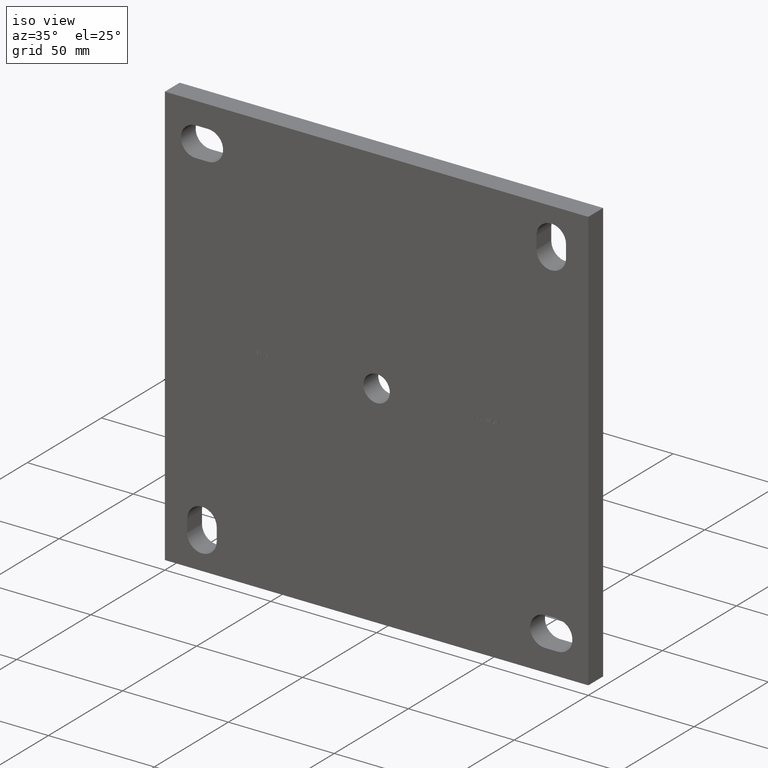
[diagram: clean part render]
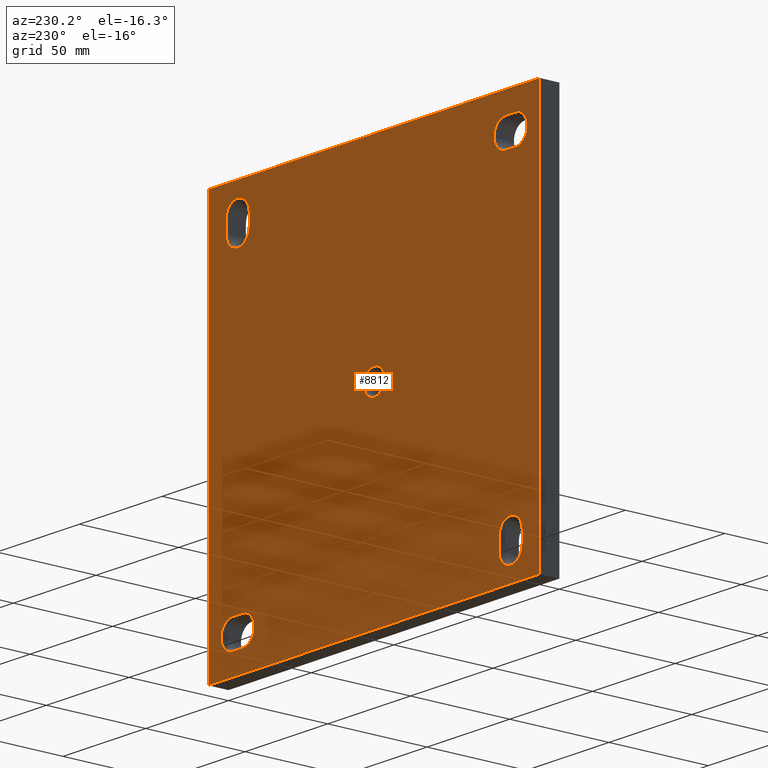
[diagram: tour spotlight — one face highlighted and labeled with its STEP entity id]
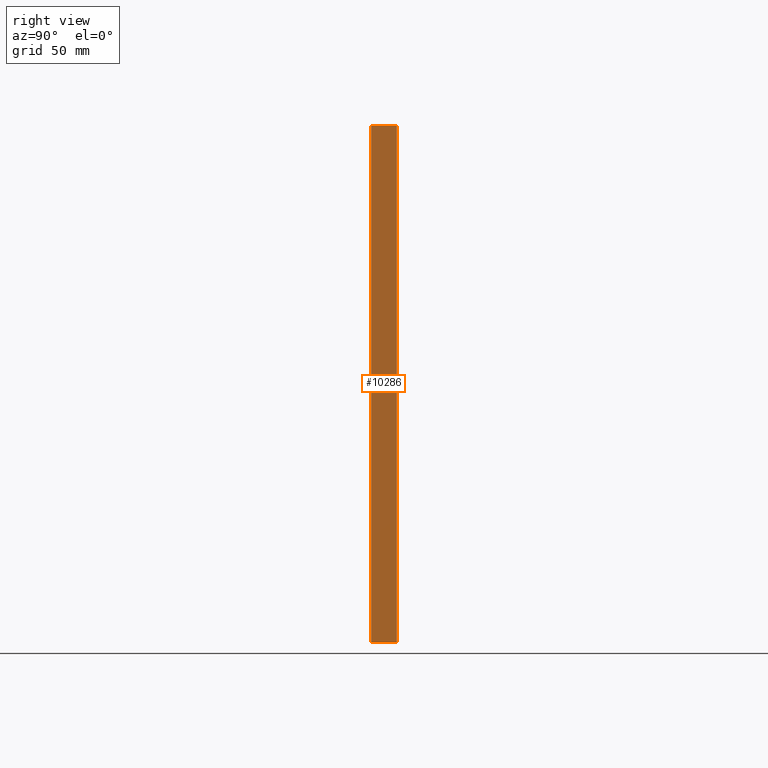
[diagram: tour spotlight — one face highlighted and labeled with its STEP entity id]
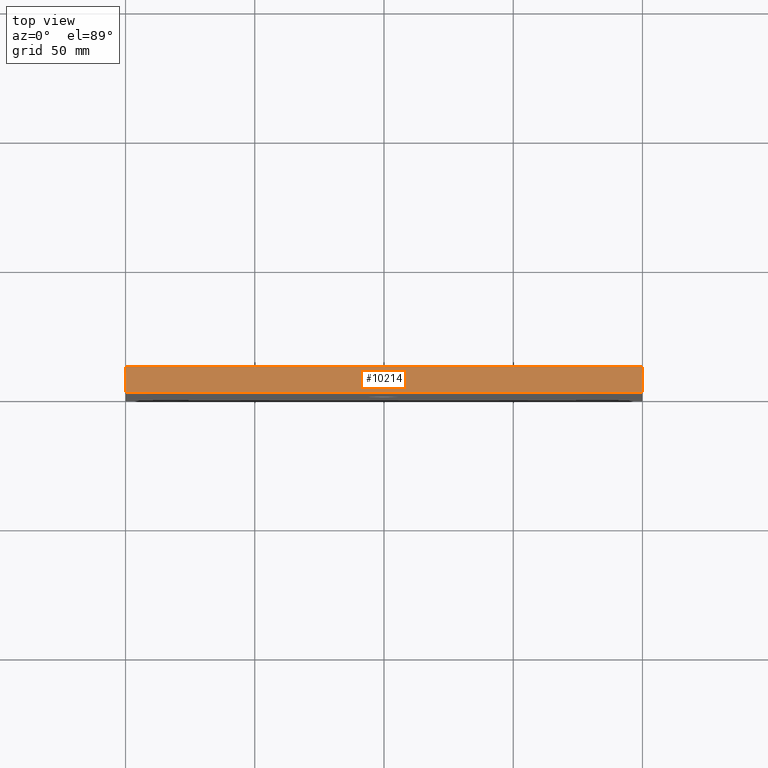
[diagram: tour spotlight — one face highlighted and labeled with its STEP entity id]
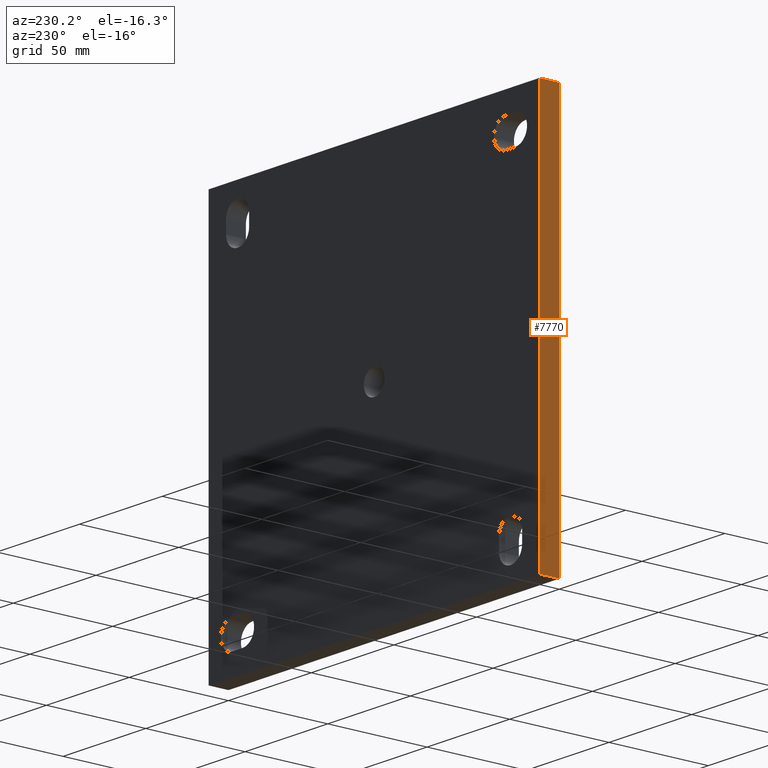
[diagram: tour spotlight — one face highlighted and labeled with its STEP entity id]
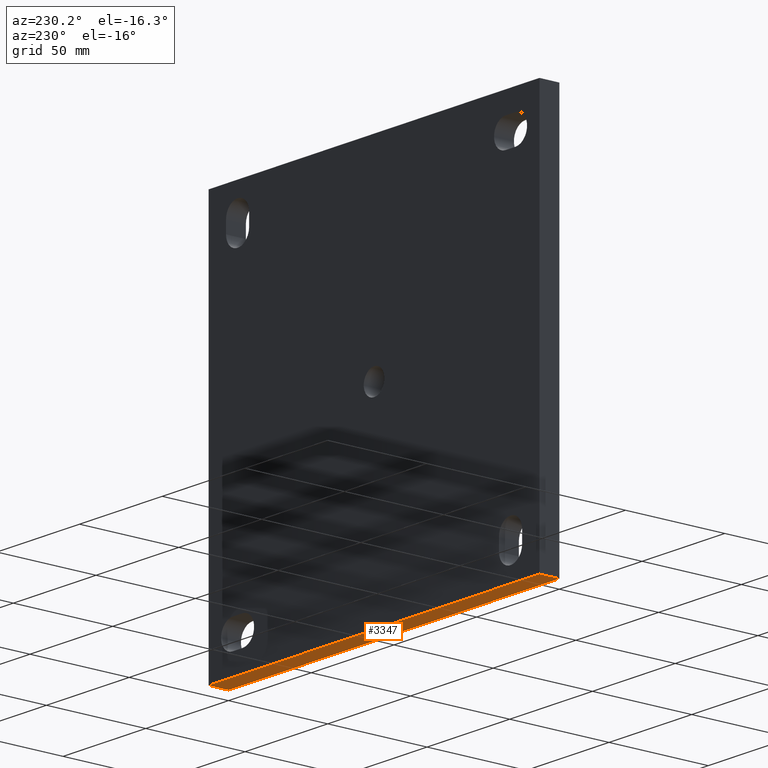
[diagram: tour spotlight — one face highlighted and labeled with its STEP entity id]
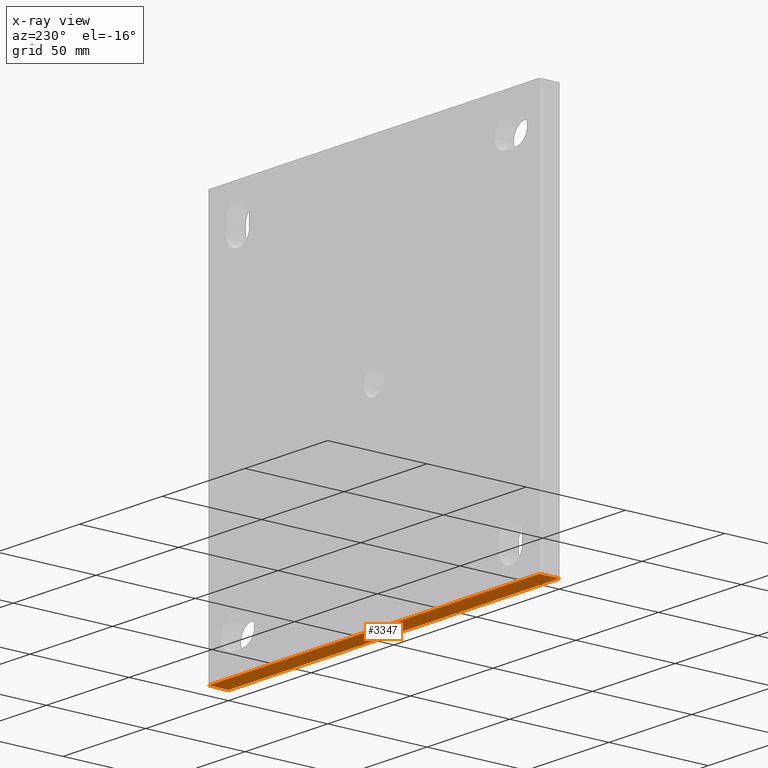
[diagram: x-ray of the same camera — body ghosted, this tour face saturated]
A machine part: a face-by-face anatomy tour. The part has 270 B-rep faces; the first image is the clean iso view, then the 5 largest visible faces are spotlighted one at a time (largest first), each with its STEP entity span.

Face 1 — auxiliary view, entity #8812. In plain terms, the highlighted planar face has unit normal (0, 1, 0).
Definition (entity closure, byte-faithful):
#16 = CIRCLE ( 'NONE', #5270, 6.999999999999992000 ) ;
#69 = VERTEX_POINT ( 'NONE', #6260 ) ;
#132 = DIRECTION ( 'NONE',  ( -1.387778780781445700E-016, -0.0000000000000000000, -1.000000000000000000 ) ) ;
#184 = CIRCLE ( 'NONE', #5570, 6.250000000000000000 ) ;
#253 = ORIENTED_EDGE ( 'NONE', *, *, #3985, .F. ) ;
#302 = AXIS2_PLACEMENT_3D ( 'NONE', #5191, #8488, #1753 ) ;
#403 = ORIENTED_EDGE ( 'NONE', *, *, #8246, .F. ) ;
#418 = ORIENTED_EDGE ( 'NONE', *, *, #8527, .F. ) ;
#451 = LINE ( 'NONE', #12053, #7504 ) ;
#498 = ORIENTED_EDGE ( 'NONE', *, *, #12910, .T. ) ;
#651 = ORIENTED_EDGE ( 'NONE', *, *, #6184, .F. ) ;
#986 = EDGE_CURVE ( 'NONE', #10662, #69, #16, .T. ) ;
#1078 = DIRECTION ( 'NONE',  ( -0.0000000000000000000, -0.0000000000000000000, -1.000000000000000000 ) ) ;
#1121 = DIRECTION ( 'NONE',  ( 0.0000000000000000000, 1.000000000000000000, 0.0000000000000000000 ) ) ;
#1127 = CIRCLE ( 'NONE', #2893, 6.999999999999992000 ) ;
#1176 = EDGE_CURVE ( 'NONE', #8747, #6365, #1602, .T. ) ;
#1190 = EDGE_LOOP ( 'NONE', ( #253, #10728 ) ) ;
#1422 = VERTEX_POINT ( 'NONE', #8541 ) ;
#1490 = EDGE_LOOP ( 'NONE', ( #14005, #9247, #651, #3257 ) ) ;
#1532 = DIRECTION ( 'NONE',  ( 0.0000000000000000000, 0.0000000000000000000, 1.000000000000000000 ) ) ;
#1602 = LINE ( 'NONE', #13160, #6186 ) ;
#1653 = PLANE ( 'NONE',  #302 ) ;
#1753 = DIRECTION ( 'NONE',  ( 0.0000000000000000000, -0.0000000000000000000, 1.000000000000000000 ) ) ;
#1755 = CIRCLE ( 'NONE', #2763, 6.999999999999992000 ) ;
#1892 = ORIENTED_EDGE ( 'NONE', *, *, #7814, .T. ) ;
#2109 = EDGE_CURVE ( 'NONE', #6828, #3331, #10063, .T. ) ;
#2131 = VERTEX_POINT ( 'NONE', #12711 ) ;
#2164 = VERTEX_POINT ( 'NONE', #9656 ) ;
#2234 = LINE ( 'NONE', #12461, #9094 ) ;
#2345 = VECTOR ( 'NONE', #9586, 1000.000000000000000 ) ;
#2367 = VERTEX_POINT ( 'NONE', #7759 ) ;
#2393 = DIRECTION ( 'NONE',  ( 0.0000000000000000000, 1.000000000000000000, 0.0000000000000000000 ) ) ;
#2538 = ORIENTED_EDGE ( 'NONE', *, *, #10329, .F. ) ;
#2633 = DIRECTION ( 'NONE',  ( 0.0000000000000000000, 1.000000000000000000, 0.0000000000000000000 ) ) ;
#2658 = DIRECTION ( 'NONE',  ( 0.0000000000000000000, 0.0000000000000000000, 1.000000000000000000 ) ) ;
#2727 = CIRCLE ( 'NONE', #8997, 6.999999999999992000 ) ;
#2763 = AXIS2_PLACEMENT_3D ( 'NONE', #9409, #11755, #1532 ) ;
#2837 = DIRECTION ( 'NONE',  ( 0.0000000000000000000, 0.0000000000000000000, 1.000000000000000000 ) ) ;
#2859 = CARTESIAN_POINT ( 'NONE',  ( -82.50000000000000000, 10.00000000000000000, -85.50000000000001400 ) ) ;
#2893 = AXIS2_PLACEMENT_3D ( 'NONE', #13314, #13465, #6650 ) ;
#3234 = VECTOR ( 'NONE', #5743, 1000.000000000000000 ) ;
#3257 = ORIENTED_EDGE ( 'NONE', *, *, #12806, .F. ) ;
#3331 = VERTEX_POINT ( 'NONE', #6038 ) ;
#3387 = VECTOR ( 'NONE', #7013, 1000.000000000000000 ) ;
#3483 = CARTESIAN_POINT ( 'NONE',  ( 79.49999999999998600, 10.00000000000000000, -75.50000000000001400 ) ) ;
#3512 = DIRECTION ( 'NONE',  ( 0.0000000000000000000, 1.000000000000000000, 0.0000000000000000000 ) ) ;
#3526 = CIRCLE ( 'NONE', #8027, 6.250000000000000000 ) ;
#3667 = CARTESIAN_POINT ( 'NONE',  ( 0.0000000000000000000, 10.00000000000000000, 0.0000000000000000000 ) ) ;
#3779 = VERTEX_POINT ( 'NONE', #12376 ) ;
#3977 = DIRECTION ( 'NONE',  ( 0.0000000000000000000, 0.0000000000000000000, 1.000000000000000000 ) ) ;
#3985 = EDGE_CURVE ( 'NONE', #9431, #10487, #3526, .T. ) ;
#4081 = DIRECTION ( 'NONE',  ( 0.0000000000000000000, 0.0000000000000000000, 1.000000000000000000 ) ) ;
#4120 = CARTESIAN_POINT ( 'NONE',  ( -75.50000000000001400, 10.00000000000000000, -85.50000000000001400 ) ) ;
#4128 = VERTEX_POINT ( 'NONE', #4159 ) ;
#4129 = CIRCLE ( 'NONE', #13408, 6.999999999999992000 ) ;
#4159 = CARTESIAN_POINT ( 'NONE',  ( 85.50000000000001400, 10.00000000000000000, -89.50000000000000000 ) ) ;
#4282 = CARTESIAN_POINT ( 'NONE',  ( -100.0000000000000000, 10.00000000000000000, -99.99999999999997200 ) ) ;
#4376 = EDGE_CURVE ( 'NONE', #8493, #10599, #1755, .T. ) ;
#4423 = CARTESIAN_POINT ( 'NONE',  ( 85.50000000000000000, 10.00000000000000000, -82.50000000000000000 ) ) ;
#4464 = CARTESIAN_POINT ( 'NONE',  ( 82.50000000000000000, 10.00000000000000000, 85.50000000000001400 ) ) ;
#4470 = VERTEX_POINT ( 'NONE', #6210 ) ;
#4562 = AXIS2_PLACEMENT_3D ( 'NONE', #4423, #11310, #11357 ) ;
#4610 = DIRECTION ( 'NONE',  ( 0.0000000000000000000, 0.0000000000000000000, 1.000000000000000000 ) ) ;
#4727 = VECTOR ( 'NONE', #13340, 1000.000000000000000 ) ;
#4766 = ORIENTED_EDGE ( 'NONE', *, *, #13560, .T. ) ;
#4811 = ORIENTED_EDGE ( 'NONE', *, *, #4376, .F. ) ;
#4823 = CARTESIAN_POINT ( 'NONE',  ( 82.50000000000000000, 10.00000000000000000, 79.49999999999998600 ) ) ;
#4845 = EDGE_CURVE ( 'NONE', #10487, #9431, #184, .T. ) ;
#5191 = CARTESIAN_POINT ( 'NONE',  ( 0.0000000000000000000, 10.00000000000000000, 0.0000000000000000000 ) ) ;
#5252 = CARTESIAN_POINT ( 'NONE',  ( -82.50000000000000000, 10.00000000000000000, -79.49999999999998600 ) ) ;
#5270 = AXIS2_PLACEMENT_3D ( 'NONE', #2859, #8552, #3977 ) ;
#5405 = EDGE_LOOP ( 'NONE', ( #4811, #12137, #418, #14534 ) ) ;
#5504 = CARTESIAN_POINT ( 'NONE',  ( -89.50000000000000000, 10.00000000000000000, -85.50000000000001400 ) ) ;
#5514 = LINE ( 'NONE', #13131, #8685 ) ;
#5531 = EDGE_CURVE ( 'NONE', #69, #3779, #9305, .T. ) ;
#5570 = AXIS2_PLACEMENT_3D ( 'NONE', #3667, #3512, #12591 ) ;
#5680 = AXIS2_PLACEMENT_3D ( 'NONE', #9629, #9577, #2837 ) ;
#5743 = DIRECTION ( 'NONE',  ( -0.0000000000000000000, -0.0000000000000000000, -1.000000000000000000 ) ) ;
#5857 = LINE ( 'NONE', #7242, #7786 ) ;
#5918 = VERTEX_POINT ( 'NONE', #6287 ) ;
#6001 = CARTESIAN_POINT ( 'NONE',  ( -100.0000000000000000, 10.00000000000000000, -99.99999999999997200 ) ) ;
#6038 = CARTESIAN_POINT ( 'NONE',  ( -99.99999999999998600, 10.00000000000000000, 100.0000000000000300 ) ) ;
#6156 = AXIS2_PLACEMENT_3D ( 'NONE', #4464, #2393, #4610 ) ;
#6184 = EDGE_CURVE ( 'NONE', #7772, #8603, #11050, .T. ) ;
#6186 = VECTOR ( 'NONE', #11993, 1000.000000000000000 ) ;
#6210 = CARTESIAN_POINT ( 'NONE',  ( 100.0000000000000000, 10.00000000000000000, -99.99999999999997200 ) ) ;
#6260 = CARTESIAN_POINT ( 'NONE',  ( -89.50000000000000000, 10.00000000000000000, -85.50000000000001400 ) ) ;
#6287 = CARTESIAN_POINT ( 'NONE',  ( 82.50000000000000000, 10.00000000000000000, 92.50000000000002800 ) ) ;
#6365 = VERTEX_POINT ( 'NONE', #12329 ) ;
#6650 = DIRECTION ( 'NONE',  ( 0.0000000000000000000, 0.0000000000000000000, 1.000000000000000000 ) ) ;
#6828 = VERTEX_POINT ( 'NONE', #4282 ) ;
#6836 = EDGE_LOOP ( 'NONE', ( #1892, #4766, #11313, #498 ) ) ;
#6891 = LINE ( 'NONE', #10470, #3387 ) ;
#6967 = CARTESIAN_POINT ( 'NONE',  ( -85.50000000000001400, 10.00000000000000000, 89.50000000000000000 ) ) ;
#7013 = DIRECTION ( 'NONE',  ( -1.000000000000000000, -0.0000000000000000000, -0.0000000000000000000 ) ) ;
#7090 = ORIENTED_EDGE ( 'NONE', *, *, #8263, .F. ) ;
#7132 = DIRECTION ( 'NONE',  ( 0.0000000000000000000, 1.000000000000000000, 0.0000000000000000000 ) ) ;
#7206 = CARTESIAN_POINT ( 'NONE',  ( 75.50000000000000000, 10.00000000000000000, 79.49999999999998600 ) ) ;
#7242 = CARTESIAN_POINT ( 'NONE',  ( -100.0000000000000000, 10.00000000000000000, -99.99999999999997200 ) ) ;
#7271 = EDGE_CURVE ( 'NONE', #5918, #2367, #10520, .T. ) ;
#7328 = FACE_BOUND ( 'NONE', #7910, .T. ) ;
#7504 = VECTOR ( 'NONE', #1078, 1000.000000000000000 ) ;
#7736 = EDGE_CURVE ( 'NONE', #2367, #13053, #451, .T. ) ;
#7759 = CARTESIAN_POINT ( 'NONE',  ( 89.50000000000001400, 10.00000000000000000, 85.50000000000001400 ) ) ;
#7768 = EDGE_CURVE ( 'NONE', #10599, #10839, #8381, .T. ) ;
#7772 = VERTEX_POINT ( 'NONE', #11365 ) ;
#7786 = VECTOR ( 'NONE', #8768, 1000.000000000000000 ) ;
#7814 = EDGE_CURVE ( 'NONE', #1422, #4470, #2234, .T. ) ;
#7864 = DIRECTION ( 'NONE',  ( 0.0000000000000000000, 0.0000000000000000000, 1.000000000000000000 ) ) ;
#7910 = EDGE_LOOP ( 'NONE', ( #11218, #9536, #12836, #2538, #14293 ) ) ;
#7913 = CARTESIAN_POINT ( 'NONE',  ( -75.50000000000001400, 10.00000000000000000, -85.50000000000001400 ) ) ;
#7954 = CARTESIAN_POINT ( 'NONE',  ( 7.654042494670957600E-016, 10.00000000000000000, -6.250000000000000000 ) ) ;
#8008 = CARTESIAN_POINT ( 'NONE',  ( -85.50000000000001400, 10.00000000000000000, 82.50000000000000000 ) ) ;
#8027 = AXIS2_PLACEMENT_3D ( 'NONE', #8231, #2633, #8429 ) ;
#8231 = CARTESIAN_POINT ( 'NONE',  ( 0.0000000000000000000, 10.00000000000000000, 0.0000000000000000000 ) ) ;
#8246 = EDGE_CURVE ( 'NONE', #6365, #5918, #10163, .T. ) ;
#8263 = EDGE_CURVE ( 'NONE', #13053, #8747, #8926, .T. ) ;
#8381 = LINE ( 'NONE', #3483, #8745 ) ;
#8429 = DIRECTION ( 'NONE',  ( 0.0000000000000000000, 0.0000000000000000000, 1.000000000000000000 ) ) ;
#8439 = EDGE_LOOP ( 'NONE', ( #7090, #10669, #9074, #403, #10815 ) ) ;
#8488 = DIRECTION ( 'NONE',  ( 0.0000000000000000000, 1.000000000000000000, 0.0000000000000000000 ) ) ;
#8493 = VERTEX_POINT ( 'NONE', #11154 ) ;
#8527 = EDGE_CURVE ( 'NONE', #10839, #4128, #8558, .T. ) ;
#8541 = CARTESIAN_POINT ( 'NONE',  ( 100.0000000000000300, 10.00000000000000000, 100.0000000000000300 ) ) ;
#8551 = DIRECTION ( 'NONE',  ( 0.0000000000000000000, 1.000000000000000000, 0.0000000000000000000 ) ) ;
#8552 = DIRECTION ( 'NONE',  ( 0.0000000000000000000, 1.000000000000000000, 0.0000000000000000000 ) ) ;
#8558 = CIRCLE ( 'NONE', #4562, 6.999999999999992000 ) ;
#8603 = VERTEX_POINT ( 'NONE', #10090 ) ;
#8613 = AXIS2_PLACEMENT_3D ( 'NONE', #4823, #9400, #2658 ) ;
#8685 = VECTOR ( 'NONE', #9683, 1000.000000000000000 ) ;
#8745 = VECTOR ( 'NONE', #11219, 1000.000000000000000 ) ;
#8747 = VERTEX_POINT ( 'NONE', #7206 ) ;
#8768 = DIRECTION ( 'NONE',  ( -1.000000000000000000, -0.0000000000000000000, -0.0000000000000000000 ) ) ;
#8812 = ADVANCED_FACE ( 'NONE', ( #7328, #9802, #9265, #10150, #9436, #12575 ), #1653, .T. ) ;
#8926 = CIRCLE ( 'NONE', #8613, 7.000000000000006200 ) ;
#8997 = AXIS2_PLACEMENT_3D ( 'NONE', #5252, #8551, #4081 ) ;
#9074 = ORIENTED_EDGE ( 'NONE', *, *, #7271, .F. ) ;
#9094 = VECTOR ( 'NONE', #132, 1000.000000000000000 ) ;
#9192 = VERTEX_POINT ( 'NONE', #10360 ) ;
#9247 = ORIENTED_EDGE ( 'NONE', *, *, #14509, .F. ) ;
#9265 = FACE_BOUND ( 'NONE', #1490, .T. ) ;
#9305 = LINE ( 'NONE', #5504, #4727 ) ;
#9317 = VERTEX_POINT ( 'NONE', #10109 ) ;
#9400 = DIRECTION ( 'NONE',  ( 0.0000000000000000000, 1.000000000000000000, 0.0000000000000000000 ) ) ;
#9409 = CARTESIAN_POINT ( 'NONE',  ( 79.49999999999998600, 10.00000000000000000, -82.50000000000000000 ) ) ;
#9431 = VERTEX_POINT ( 'NONE', #11780 ) ;
#9436 = FACE_BOUND ( 'NONE', #1190, .T. ) ;
#9536 = ORIENTED_EDGE ( 'NONE', *, *, #12742, .F. ) ;
#9577 = DIRECTION ( 'NONE',  ( 0.0000000000000000000, 1.000000000000000000, 0.0000000000000000000 ) ) ;
#9586 = DIRECTION ( 'NONE',  ( 1.000000000000000000, 0.0000000000000000000, 0.0000000000000000000 ) ) ;
#9598 = LINE ( 'NONE', #13797, #11863 ) ;
#9629 = CARTESIAN_POINT ( 'NONE',  ( -79.49999999999998600, 10.00000000000000000, 82.50000000000000000 ) ) ;
#9656 = CARTESIAN_POINT ( 'NONE',  ( -75.50000000000001400, 10.00000000000000000, -79.49999999999998600 ) ) ;
#9683 = DIRECTION ( 'NONE',  ( 1.000000000000000000, 0.0000000000000000000, 0.0000000000000000000 ) ) ;
#9802 = FACE_BOUND ( 'NONE', #8439, .T. ) ;
#10063 = LINE ( 'NONE', #6001, #10765 ) ;
#10090 = CARTESIAN_POINT ( 'NONE',  ( -79.49999999999998600, 10.00000000000000000, 75.50000000000001400 ) ) ;
#10109 = CARTESIAN_POINT ( 'NONE',  ( -85.50000000000001400, 10.00000000000000000, 89.50000000000000000 ) ) ;
#10150 = FACE_BOUND ( 'NONE', #5405, .T. ) ;
#10163 = CIRCLE ( 'NONE', #12350, 7.000000000000006200 ) ;
#10329 = EDGE_CURVE ( 'NONE', #3779, #2131, #2727, .T. ) ;
#10360 = CARTESIAN_POINT ( 'NONE',  ( -85.50000000000001400, 10.00000000000000000, 75.50000000000001400 ) ) ;
#10470 = CARTESIAN_POINT ( 'NONE',  ( -85.50000000000001400, 10.00000000000000000, 75.50000000000001400 ) ) ;
#10487 = VERTEX_POINT ( 'NONE', #7954 ) ;
#10520 = CIRCLE ( 'NONE', #6156, 7.000000000000006200 ) ;
#10599 = VERTEX_POINT ( 'NONE', #12096 ) ;
#10662 = VERTEX_POINT ( 'NONE', #4120 ) ;
#10669 = ORIENTED_EDGE ( 'NONE', *, *, #7736, .F. ) ;
#10728 = ORIENTED_EDGE ( 'NONE', *, *, #4845, .F. ) ;
#10765 = VECTOR ( 'NONE', #11607, 1000.000000000000000 ) ;
#10815 = ORIENTED_EDGE ( 'NONE', *, *, #1176, .F. ) ;
#10839 = VERTEX_POINT ( 'NONE', #12581 ) ;
#10965 = LINE ( 'NONE', #7913, #3234 ) ;
#11050 = CIRCLE ( 'NONE', #5680, 6.999999999999992000 ) ;
#11154 = CARTESIAN_POINT ( 'NONE',  ( 79.49999999999998600, 10.00000000000000000, -89.50000000000000000 ) ) ;
#11218 = ORIENTED_EDGE ( 'NONE', *, *, #986, .F. ) ;
#11219 = DIRECTION ( 'NONE',  ( 1.000000000000000000, 0.0000000000000000000, 0.0000000000000000000 ) ) ;
#11310 = DIRECTION ( 'NONE',  ( 0.0000000000000000000, 1.000000000000000000, 0.0000000000000000000 ) ) ;
#11313 = ORIENTED_EDGE ( 'NONE', *, *, #2109, .T. ) ;
#11335 = EDGE_CURVE ( 'NONE', #4128, #8493, #9598, .T. ) ;
#11357 = DIRECTION ( 'NONE',  ( 0.0000000000000000000, 0.0000000000000000000, 1.000000000000000000 ) ) ;
#11365 = CARTESIAN_POINT ( 'NONE',  ( -79.49999999999998600, 10.00000000000000000, 89.50000000000000000 ) ) ;
#11604 = DIRECTION ( 'NONE',  ( 0.0000000000000000000, 0.0000000000000000000, 1.000000000000000000 ) ) ;
#11607 = DIRECTION ( 'NONE',  ( 6.938893903907228400E-017, 0.0000000000000000000, 1.000000000000000000 ) ) ;
#11755 = DIRECTION ( 'NONE',  ( 0.0000000000000000000, 1.000000000000000000, 0.0000000000000000000 ) ) ;
#11780 = CARTESIAN_POINT ( 'NONE',  ( 0.0000000000000000000, 10.00000000000000000, 6.250000000000000000 ) ) ;
#11863 = VECTOR ( 'NONE', #12468, 1000.000000000000000 ) ;
#11900 = EDGE_CURVE ( 'NONE', #2131, #2164, #1127, .T. ) ;
#11993 = DIRECTION ( 'NONE',  ( 0.0000000000000000000, 0.0000000000000000000, 1.000000000000000000 ) ) ;
#12053 = CARTESIAN_POINT ( 'NONE',  ( 89.50000000000001400, 10.00000000000000000, 79.49999999999998600 ) ) ;
#12096 = CARTESIAN_POINT ( 'NONE',  ( 79.49999999999998600, 10.00000000000000000, -75.50000000000001400 ) ) ;
#12137 = ORIENTED_EDGE ( 'NONE', *, *, #11335, .F. ) ;
#12329 = CARTESIAN_POINT ( 'NONE',  ( 75.50000000000000000, 10.00000000000000000, 85.50000000000001400 ) ) ;
#12350 = AXIS2_PLACEMENT_3D ( 'NONE', #13846, #7132, #11604 ) ;
#12376 = CARTESIAN_POINT ( 'NONE',  ( -89.50000000000000000, 10.00000000000000000, -79.49999999999998600 ) ) ;
#12461 = CARTESIAN_POINT ( 'NONE',  ( 100.0000000000000000, 10.00000000000000000, -99.99999999999997200 ) ) ;
#12468 = DIRECTION ( 'NONE',  ( -1.000000000000000000, -0.0000000000000000000, -0.0000000000000000000 ) ) ;
#12575 = FACE_OUTER_BOUND ( 'NONE', #6836, .T. ) ;
#12581 = CARTESIAN_POINT ( 'NONE',  ( 85.50000000000001400, 10.00000000000000000, -75.50000000000001400 ) ) ;
#12587 = EDGE_CURVE ( 'NONE', #9192, #9317, #4129, .T. ) ;
#12591 = DIRECTION ( 'NONE',  ( 0.0000000000000000000, 0.0000000000000000000, 1.000000000000000000 ) ) ;
#12698 = LINE ( 'NONE', #6967, #2345 ) ;
#12711 = CARTESIAN_POINT ( 'NONE',  ( -82.50000000000000000, 10.00000000000000000, -72.50000000000000000 ) ) ;
#12742 = EDGE_CURVE ( 'NONE', #2164, #10662, #10965, .T. ) ;
#12806 = EDGE_CURVE ( 'NONE', #9317, #7772, #12698, .T. ) ;
#12836 = ORIENTED_EDGE ( 'NONE', *, *, #11900, .F. ) ;
#12910 = EDGE_CURVE ( 'NONE', #3331, #1422, #5514, .T. ) ;
#13053 = VERTEX_POINT ( 'NONE', #14486 ) ;
#13131 = CARTESIAN_POINT ( 'NONE',  ( -99.99999999999998600, 10.00000000000000000, 100.0000000000000300 ) ) ;
#13160 = CARTESIAN_POINT ( 'NONE',  ( 75.50000000000000000, 10.00000000000000000, 79.49999999999998600 ) ) ;
#13314 = CARTESIAN_POINT ( 'NONE',  ( -82.50000000000000000, 10.00000000000000000, -79.49999999999998600 ) ) ;
#13340 = DIRECTION ( 'NONE',  ( 0.0000000000000000000, 0.0000000000000000000, 1.000000000000000000 ) ) ;
#13408 = AXIS2_PLACEMENT_3D ( 'NONE', #8008, #1121, #7864 ) ;
#13465 = DIRECTION ( 'NONE',  ( 0.0000000000000000000, 1.000000000000000000, 0.0000000000000000000 ) ) ;
#13560 = EDGE_CURVE ( 'NONE', #4470, #6828, #5857, .T. ) ;
#13797 = CARTESIAN_POINT ( 'NONE',  ( 79.49999999999998600, 10.00000000000000000, -89.50000000000000000 ) ) ;
#13846 = CARTESIAN_POINT ( 'NONE',  ( 82.50000000000000000, 10.00000000000000000, 85.50000000000001400 ) ) ;
#14005 = ORIENTED_EDGE ( 'NONE', *, *, #12587, .F. ) ;
#14293 = ORIENTED_EDGE ( 'NONE', *, *, #5531, .F. ) ;
#14486 = CARTESIAN_POINT ( 'NONE',  ( 89.50000000000001400, 10.00000000000000000, 79.49999999999998600 ) ) ;
#14509 = EDGE_CURVE ( 'NONE', #8603, #9192, #6891, .T. ) ;
#14534 = ORIENTED_EDGE ( 'NONE', *, *, #7768, .F. ) ;

Face 2 — right view, entity #10286. In plain terms, the highlighted planar face has unit normal (-1, 0, 0).
Definition (entity closure, byte-faithful):
#132 = DIRECTION ( 'NONE',  ( -1.387778780781445700E-016, -0.0000000000000000000, -1.000000000000000000 ) ) ;
#1014 = VECTOR ( 'NONE', #8266, 1000.000000000000000 ) ;
#1174 = AXIS2_PLACEMENT_3D ( 'NONE', #1960, #4132, #6475 ) ;
#1422 = VERTEX_POINT ( 'NONE', #8541 ) ;
#1718 = VERTEX_POINT ( 'NONE', #3745 ) ;
#1960 = CARTESIAN_POINT ( 'NONE',  ( 100.0000000000000000, 10.00000000000000000, -99.99999999999997200 ) ) ;
#1970 = CARTESIAN_POINT ( 'NONE',  ( 100.0000000000000300, 0.0000000000000000000, 100.0000000000000300 ) ) ;
#2234 = LINE ( 'NONE', #12461, #9094 ) ;
#2356 = ORIENTED_EDGE ( 'NONE', *, *, #13759, .T. ) ;
#2517 = DIRECTION ( 'NONE',  ( -0.0000000000000000000, -1.000000000000000000, -0.0000000000000000000 ) ) ;
#2906 = ORIENTED_EDGE ( 'NONE', *, *, #6606, .F. ) ;
#3230 = EDGE_LOOP ( 'NONE', ( #13850, #2906, #7305, #2356 ) ) ;
#3745 = CARTESIAN_POINT ( 'NONE',  ( 100.0000000000000000, 0.0000000000000000000, -99.99999999999997200 ) ) ;
#4132 = DIRECTION ( 'NONE',  ( -1.000000000000000000, 0.0000000000000000000, 1.387778780781445700E-016 ) ) ;
#4470 = VERTEX_POINT ( 'NONE', #6210 ) ;
#4638 = LINE ( 'NONE', #4790, #6751 ) ;
#4790 = CARTESIAN_POINT ( 'NONE',  ( 100.0000000000000000, 0.0000000000000000000, -99.99999999999997200 ) ) ;
#5770 = DIRECTION ( 'NONE',  ( -1.387778780781445700E-016, -0.0000000000000000000, -1.000000000000000000 ) ) ;
#6210 = CARTESIAN_POINT ( 'NONE',  ( 100.0000000000000000, 10.00000000000000000, -99.99999999999997200 ) ) ;
#6380 = LINE ( 'NONE', #10196, #11832 ) ;
#6475 = DIRECTION ( 'NONE',  ( 1.387778780781445700E-016, 0.0000000000000000000, 1.000000000000000000 ) ) ;
#6606 = EDGE_CURVE ( 'NONE', #4470, #1718, #8771, .T. ) ;
#6751 = VECTOR ( 'NONE', #5770, 1000.000000000000000 ) ;
#6765 = FACE_OUTER_BOUND ( 'NONE', #3230, .T. ) ;
#7305 = ORIENTED_EDGE ( 'NONE', *, *, #7814, .F. ) ;
#7814 = EDGE_CURVE ( 'NONE', #1422, #4470, #2234, .T. ) ;
#8266 = DIRECTION ( 'NONE',  ( -0.0000000000000000000, -1.000000000000000000, -0.0000000000000000000 ) ) ;
#8411 = VERTEX_POINT ( 'NONE', #1970 ) ;
#8541 = CARTESIAN_POINT ( 'NONE',  ( 100.0000000000000300, 10.00000000000000000, 100.0000000000000300 ) ) ;
#8771 = LINE ( 'NONE', #13997, #1014 ) ;
#9094 = VECTOR ( 'NONE', #132, 1000.000000000000000 ) ;
#10196 = CARTESIAN_POINT ( 'NONE',  ( 100.0000000000000300, 10.00000000000000000, 100.0000000000000300 ) ) ;
#10286 = ADVANCED_FACE ( 'NONE', ( #6765 ), #14317, .F. ) ;
#10837 = EDGE_CURVE ( 'NONE', #8411, #1718, #4638, .T. ) ;
#11832 = VECTOR ( 'NONE', #2517, 1000.000000000000000 ) ;
#12461 = CARTESIAN_POINT ( 'NONE',  ( 100.0000000000000000, 10.00000000000000000, -99.99999999999997200 ) ) ;
#13759 = EDGE_CURVE ( 'NONE', #1422, #8411, #6380, .T. ) ;
#13850 = ORIENTED_EDGE ( 'NONE', *, *, #10837, .T. ) ;
#13997 = CARTESIAN_POINT ( 'NONE',  ( 100.0000000000000000, 10.00000000000000000, -99.99999999999997200 ) ) ;
#14317 = PLANE ( 'NONE',  #1174 ) ;

Face 3 — top view, entity #10214. In plain terms, the highlighted planar face has unit normal (0, 0, -1).
Definition (entity closure, byte-faithful):
#785 = FACE_OUTER_BOUND ( 'NONE', #2728, .T. ) ;
#1422 = VERTEX_POINT ( 'NONE', #8541 ) ;
#1970 = CARTESIAN_POINT ( 'NONE',  ( 100.0000000000000300, 0.0000000000000000000, 100.0000000000000300 ) ) ;
#2517 = DIRECTION ( 'NONE',  ( -0.0000000000000000000, -1.000000000000000000, -0.0000000000000000000 ) ) ;
#2728 = EDGE_LOOP ( 'NONE', ( #4225, #3189, #8305, #14355 ) ) ;
#2748 = VECTOR ( 'NONE', #12374, 1000.000000000000000 ) ;
#3189 = ORIENTED_EDGE ( 'NONE', *, *, #13759, .F. ) ;
#3331 = VERTEX_POINT ( 'NONE', #6038 ) ;
#4225 = ORIENTED_EDGE ( 'NONE', *, *, #11482, .T. ) ;
#4850 = CARTESIAN_POINT ( 'NONE',  ( -99.99999999999998600, 0.0000000000000000000, 100.0000000000000300 ) ) ;
#5514 = LINE ( 'NONE', #13131, #8685 ) ;
#6038 = CARTESIAN_POINT ( 'NONE',  ( -99.99999999999998600, 10.00000000000000000, 100.0000000000000300 ) ) ;
#6361 = CARTESIAN_POINT ( 'NONE',  ( -99.99999999999998600, 10.00000000000000000, 100.0000000000000300 ) ) ;
#6380 = LINE ( 'NONE', #10196, #11832 ) ;
#6547 = PLANE ( 'NONE',  #12549 ) ;
#7403 = VERTEX_POINT ( 'NONE', #4850 ) ;
#7677 = DIRECTION ( 'NONE',  ( -1.000000000000000000, 0.0000000000000000000, -0.0000000000000000000 ) ) ;
#8305 = ORIENTED_EDGE ( 'NONE', *, *, #12910, .F. ) ;
#8411 = VERTEX_POINT ( 'NONE', #1970 ) ;
#8541 = CARTESIAN_POINT ( 'NONE',  ( 100.0000000000000300, 10.00000000000000000, 100.0000000000000300 ) ) ;
#8685 = VECTOR ( 'NONE', #9683, 1000.000000000000000 ) ;
#8818 = DIRECTION ( 'NONE',  ( 0.0000000000000000000, 0.0000000000000000000, -1.000000000000000000 ) ) ;
#9250 = LINE ( 'NONE', #11470, #2748 ) ;
#9371 = EDGE_CURVE ( 'NONE', #3331, #7403, #9250, .T. ) ;
#9683 = DIRECTION ( 'NONE',  ( 1.000000000000000000, 0.0000000000000000000, 0.0000000000000000000 ) ) ;
#9882 = DIRECTION ( 'NONE',  ( 1.000000000000000000, 0.0000000000000000000, 0.0000000000000000000 ) ) ;
#10196 = CARTESIAN_POINT ( 'NONE',  ( 100.0000000000000300, 10.00000000000000000, 100.0000000000000300 ) ) ;
#10214 = ADVANCED_FACE ( 'NONE', ( #785 ), #6547, .F. ) ;
#10914 = CARTESIAN_POINT ( 'NONE',  ( -99.99999999999998600, 0.0000000000000000000, 100.0000000000000300 ) ) ;
#11470 = CARTESIAN_POINT ( 'NONE',  ( -99.99999999999998600, 10.00000000000000000, 100.0000000000000300 ) ) ;
#11482 = EDGE_CURVE ( 'NONE', #7403, #8411, #12547, .T. ) ;
#11832 = VECTOR ( 'NONE', #2517, 1000.000000000000000 ) ;
#12035 = VECTOR ( 'NONE', #9882, 1000.000000000000000 ) ;
#12374 = DIRECTION ( 'NONE',  ( -0.0000000000000000000, -1.000000000000000000, -0.0000000000000000000 ) ) ;
#12547 = LINE ( 'NONE', #10914, #12035 ) ;
#12549 = AXIS2_PLACEMENT_3D ( 'NONE', #6361, #8818, #7677 ) ;
#12910 = EDGE_CURVE ( 'NONE', #3331, #1422, #5514, .T. ) ;
#13131 = CARTESIAN_POINT ( 'NONE',  ( -99.99999999999998600, 10.00000000000000000, 100.0000000000000300 ) ) ;
#13759 = EDGE_CURVE ( 'NONE', #1422, #8411, #6380, .T. ) ;
#14355 = ORIENTED_EDGE ( 'NONE', *, *, #9371, .T. ) ;

Face 4 — auxiliary view, entity #7770. In plain terms, the highlighted planar face has unit normal (1, 0, -0).
Definition (entity closure, byte-faithful):
#26 = AXIS2_PLACEMENT_3D ( 'NONE', #7968, #10147, #3393 ) ;
#96 = FACE_OUTER_BOUND ( 'NONE', #695, .T. ) ;
#345 = LINE ( 'NONE', #8332, #3345 ) ;
#695 = EDGE_LOOP ( 'NONE', ( #12253, #13263, #12014, #4740 ) ) ;
#2109 = EDGE_CURVE ( 'NONE', #6828, #3331, #10063, .T. ) ;
#2268 = PLANE ( 'NONE',  #26 ) ;
#2748 = VECTOR ( 'NONE', #12374, 1000.000000000000000 ) ;
#3231 = EDGE_CURVE ( 'NONE', #6828, #3939, #10768, .T. ) ;
#3331 = VERTEX_POINT ( 'NONE', #6038 ) ;
#3345 = VECTOR ( 'NONE', #9521, 1000.000000000000000 ) ;
#3393 = DIRECTION ( 'NONE',  ( -6.938893903907228400E-017, 0.0000000000000000000, -1.000000000000000000 ) ) ;
#3939 = VERTEX_POINT ( 'NONE', #12632 ) ;
#3976 = EDGE_CURVE ( 'NONE', #3939, #7403, #345, .T. ) ;
#4282 = CARTESIAN_POINT ( 'NONE',  ( -100.0000000000000000, 10.00000000000000000, -99.99999999999997200 ) ) ;
#4740 = ORIENTED_EDGE ( 'NONE', *, *, #3231, .T. ) ;
#4850 = CARTESIAN_POINT ( 'NONE',  ( -99.99999999999998600, 0.0000000000000000000, 100.0000000000000300 ) ) ;
#5985 = CARTESIAN_POINT ( 'NONE',  ( -100.0000000000000000, 10.00000000000000000, -99.99999999999997200 ) ) ;
#6001 = CARTESIAN_POINT ( 'NONE',  ( -100.0000000000000000, 10.00000000000000000, -99.99999999999997200 ) ) ;
#6038 = CARTESIAN_POINT ( 'NONE',  ( -99.99999999999998600, 10.00000000000000000, 100.0000000000000300 ) ) ;
#6828 = VERTEX_POINT ( 'NONE', #4282 ) ;
#7403 = VERTEX_POINT ( 'NONE', #4850 ) ;
#7770 = ADVANCED_FACE ( 'NONE', ( #96 ), #2268, .F. ) ;
#7968 = CARTESIAN_POINT ( 'NONE',  ( -100.0000000000000000, 10.00000000000000000, -99.99999999999997200 ) ) ;
#8332 = CARTESIAN_POINT ( 'NONE',  ( -100.0000000000000000, 0.0000000000000000000, -99.99999999999997200 ) ) ;
#9250 = LINE ( 'NONE', #11470, #2748 ) ;
#9371 = EDGE_CURVE ( 'NONE', #3331, #7403, #9250, .T. ) ;
#9521 = DIRECTION ( 'NONE',  ( 6.938893903907228400E-017, 0.0000000000000000000, 1.000000000000000000 ) ) ;
#10063 = LINE ( 'NONE', #6001, #10765 ) ;
#10147 = DIRECTION ( 'NONE',  ( 1.000000000000000000, 0.0000000000000000000, -6.938893903907228400E-017 ) ) ;
#10765 = VECTOR ( 'NONE', #11607, 1000.000000000000000 ) ;
#10768 = LINE ( 'NONE', #5985, #11289 ) ;
#11289 = VECTOR ( 'NONE', #12844, 1000.000000000000000 ) ;
#11470 = CARTESIAN_POINT ( 'NONE',  ( -99.99999999999998600, 10.00000000000000000, 100.0000000000000300 ) ) ;
#11607 = DIRECTION ( 'NONE',  ( 6.938893903907228400E-017, 0.0000000000000000000, 1.000000000000000000 ) ) ;
#12014 = ORIENTED_EDGE ( 'NONE', *, *, #2109, .F. ) ;
#12253 = ORIENTED_EDGE ( 'NONE', *, *, #3976, .T. ) ;
#12374 = DIRECTION ( 'NONE',  ( -0.0000000000000000000, -1.000000000000000000, -0.0000000000000000000 ) ) ;
#12632 = CARTESIAN_POINT ( 'NONE',  ( -100.0000000000000000, 0.0000000000000000000, -99.99999999999997200 ) ) ;
#12844 = DIRECTION ( 'NONE',  ( -0.0000000000000000000, -1.000000000000000000, -0.0000000000000000000 ) ) ;
#13263 = ORIENTED_EDGE ( 'NONE', *, *, #9371, .F. ) ;

Face 5 — auxiliary view, entity #3347. An x-ray twin of the same camera follows (body ghosted, this face saturated) — the face is partly hidden behind the body. In plain terms, the highlighted planar face has unit normal (0, 0, 1).
Definition (entity closure, byte-faithful):
#666 = DIRECTION ( 'NONE',  ( 1.000000000000000000, 0.0000000000000000000, -0.0000000000000000000 ) ) ;
#718 = FACE_OUTER_BOUND ( 'NONE', #7613, .T. ) ;
#1014 = VECTOR ( 'NONE', #8266, 1000.000000000000000 ) ;
#1718 = VERTEX_POINT ( 'NONE', #3745 ) ;
#3231 = EDGE_CURVE ( 'NONE', #6828, #3939, #10768, .T. ) ;
#3347 = ADVANCED_FACE ( 'NONE', ( #718 ), #9834, .F. ) ;
#3745 = CARTESIAN_POINT ( 'NONE',  ( 100.0000000000000000, 0.0000000000000000000, -99.99999999999997200 ) ) ;
#3939 = VERTEX_POINT ( 'NONE', #12632 ) ;
#4252 = ORIENTED_EDGE ( 'NONE', *, *, #13560, .F. ) ;
#4282 = CARTESIAN_POINT ( 'NONE',  ( -100.0000000000000000, 10.00000000000000000, -99.99999999999997200 ) ) ;
#4470 = VERTEX_POINT ( 'NONE', #6210 ) ;
#5245 = CARTESIAN_POINT ( 'NONE',  ( -100.0000000000000000, 10.00000000000000000, -99.99999999999997200 ) ) ;
#5380 = AXIS2_PLACEMENT_3D ( 'NONE', #5245, #9790, #666 ) ;
#5857 = LINE ( 'NONE', #7242, #7786 ) ;
#5985 = CARTESIAN_POINT ( 'NONE',  ( -100.0000000000000000, 10.00000000000000000, -99.99999999999997200 ) ) ;
#6210 = CARTESIAN_POINT ( 'NONE',  ( 100.0000000000000000, 10.00000000000000000, -99.99999999999997200 ) ) ;
#6606 = EDGE_CURVE ( 'NONE', #4470, #1718, #8771, .T. ) ;
#6808 = VECTOR ( 'NONE', #6960, 1000.000000000000000 ) ;
#6828 = VERTEX_POINT ( 'NONE', #4282 ) ;
#6909 = CARTESIAN_POINT ( 'NONE',  ( -100.0000000000000000, 0.0000000000000000000, -99.99999999999997200 ) ) ;
#6960 = DIRECTION ( 'NONE',  ( -1.000000000000000000, -0.0000000000000000000, -0.0000000000000000000 ) ) ;
#7242 = CARTESIAN_POINT ( 'NONE',  ( -100.0000000000000000, 10.00000000000000000, -99.99999999999997200 ) ) ;
#7406 = EDGE_CURVE ( 'NONE', #1718, #3939, #8396, .T. ) ;
#7613 = EDGE_LOOP ( 'NONE', ( #13445, #10348, #4252, #13580 ) ) ;
#7786 = VECTOR ( 'NONE', #8768, 1000.000000000000000 ) ;
#8266 = DIRECTION ( 'NONE',  ( -0.0000000000000000000, -1.000000000000000000, -0.0000000000000000000 ) ) ;
#8396 = LINE ( 'NONE', #6909, #6808 ) ;
#8768 = DIRECTION ( 'NONE',  ( -1.000000000000000000, -0.0000000000000000000, -0.0000000000000000000 ) ) ;
#8771 = LINE ( 'NONE', #13997, #1014 ) ;
#9790 = DIRECTION ( 'NONE',  ( 0.0000000000000000000, 0.0000000000000000000, 1.000000000000000000 ) ) ;
#9834 = PLANE ( 'NONE',  #5380 ) ;
#10348 = ORIENTED_EDGE ( 'NONE', *, *, #3231, .F. ) ;
#10768 = LINE ( 'NONE', #5985, #11289 ) ;
#11289 = VECTOR ( 'NONE', #12844, 1000.000000000000000 ) ;
#12632 = CARTESIAN_POINT ( 'NONE',  ( -100.0000000000000000, 0.0000000000000000000, -99.99999999999997200 ) ) ;
#12844 = DIRECTION ( 'NONE',  ( -0.0000000000000000000, -1.000000000000000000, -0.0000000000000000000 ) ) ;
#13445 = ORIENTED_EDGE ( 'NONE', *, *, #7406, .T. ) ;
#13560 = EDGE_CURVE ( 'NONE', #4470, #6828, #5857, .T. ) ;
#13580 = ORIENTED_EDGE ( 'NONE', *, *, #6606, .T. ) ;
#13997 = CARTESIAN_POINT ( 'NONE',  ( 100.0000000000000000, 10.00000000000000000, -99.99999999999997200 ) ) ;